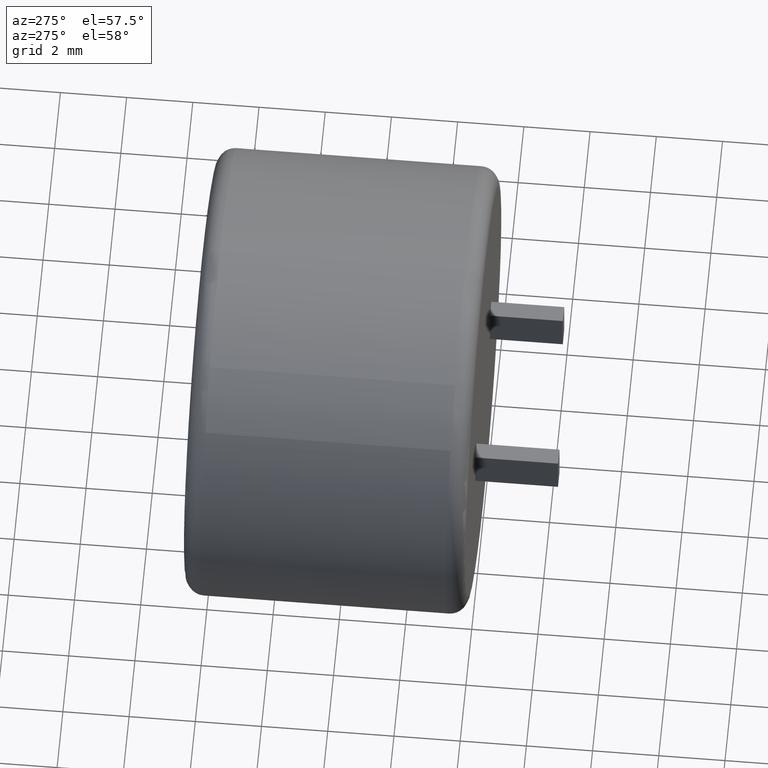
[diagram: clean part render]
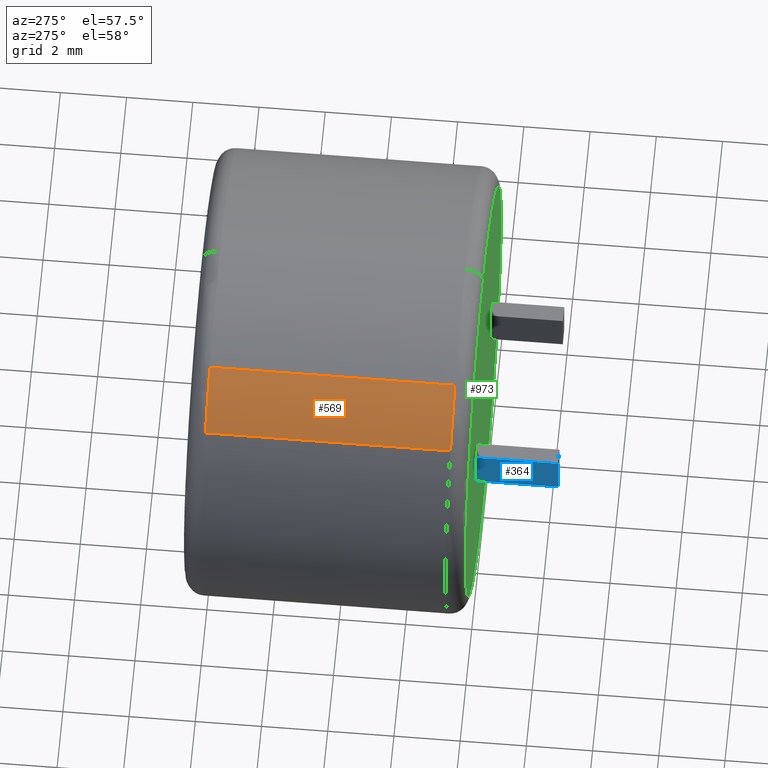
[diagram: same view with three faces highlighted in distinct colors, each labeled with its STEP entity id]
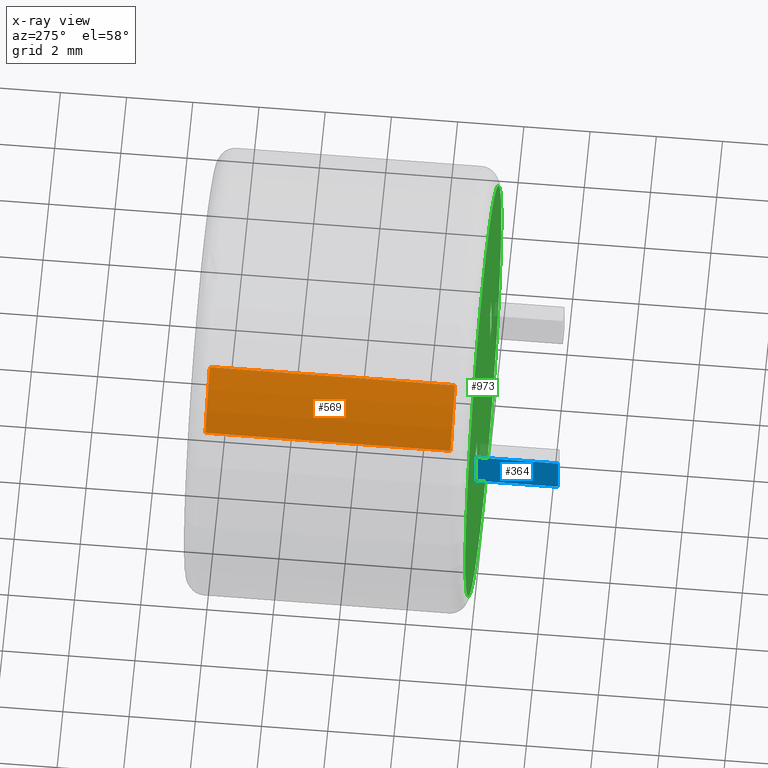
[diagram: x-ray of the same camera — body ghosted, the three highlighted faces saturated]
A machine part, auxiliary view with three faces highlighted in distinct colors.
The next image is the same camera in x-ray (body ghosted, the three faces saturated) — at least one of them is partly hidden behind the body in this view.
Their STEP definitions:

[orange] entity #569 — the highlighted cylindrical surface (partial cylindrical patch) has radius 6.76 mm, axis along (-0, -1, -0).
#2 = LINE ( 'NONE', #965, #1424 ) ;
#64 = DIRECTION ( 'NONE',  ( 0.0000000000000000000, 1.000000000000000000, 0.0000000000000000000 ) ) ;
#249 = CARTESIAN_POINT ( 'NONE',  ( 0.0000000000000000000, 8.500000000000000000, 0.0000000000000000000 ) ) ;
#262 = ORIENTED_EDGE ( 'NONE', *, *, #1116, .T. ) ;
#295 = CARTESIAN_POINT ( 'NONE',  ( 0.0000000000000000000, 0.5482500000000001300, 0.0000000000000000000 ) ) ;
#479 = VERTEX_POINT ( 'NONE', #1264 ) ;
#524 = CARTESIAN_POINT ( 'NONE',  ( -5.054955067196869900, 7.951750000000000500, 4.488321431072051800 ) ) ;
#569 = ADVANCED_FACE ( 'NONE', ( #1046 ), #1907, .T. ) ;
#727 = VERTEX_POINT ( 'NONE', #524 ) ;
#753 = VERTEX_POINT ( 'NONE', #1211 ) ;
#847 = DIRECTION ( 'NONE',  ( -0.0000000000000000000, -1.000000000000000000, -0.0000000000000000000 ) ) ;
#875 = EDGE_LOOP ( 'NONE', ( #2617, #262, #1889, #2301 ) ) ;
#882 = DIRECTION ( 'NONE',  ( 0.0000000000000000000, 0.0000000000000000000, -1.000000000000000000 ) ) ;
#893 = CIRCLE ( 'NONE', #1956, 6.759999999999999800 ) ;
#965 = CARTESIAN_POINT ( 'NONE',  ( -3.524182974669473700, 8.500000000000000000, 5.768685670154841500 ) ) ;
#1046 = FACE_OUTER_BOUND ( 'NONE', #875, .T. ) ;
#1081 = CARTESIAN_POINT ( 'NONE',  ( 0.0000000000000000000, 7.951750000000000500, 0.0000000000000000000 ) ) ;
#1116 = EDGE_CURVE ( 'NONE', #479, #753, #2552, .T. ) ;
#1208 = LINE ( 'NONE', #1671, #1302 ) ;
#1211 = CARTESIAN_POINT ( 'NONE',  ( -3.524182974669471500, 0.5482500000000001300, 5.768685670154843200 ) ) ;
#1264 = CARTESIAN_POINT ( 'NONE',  ( -5.054955067196869900, 0.5482500000000001300, 4.488321431072051800 ) ) ;
#1302 = VECTOR ( 'NONE', #847, 1000.000000000000000 ) ;
#1308 = DIRECTION ( 'NONE',  ( -0.0000000000000000000, -1.000000000000000000, -0.0000000000000000000 ) ) ;
#1311 = DIRECTION ( 'NONE',  ( -0.0000000000000000000, -1.000000000000000000, -0.0000000000000000000 ) ) ;
#1424 = VECTOR ( 'NONE', #2697, 1000.000000000000000 ) ;
#1627 = EDGE_CURVE ( 'NONE', #753, #2721, #2, .T. ) ;
#1671 = CARTESIAN_POINT ( 'NONE',  ( -5.054955067196872600, 8.500000000000000000, 4.488321431072049200 ) ) ;
#1760 = DIRECTION ( 'NONE',  ( 0.0000000000000000000, 0.0000000000000000000, -1.000000000000000000 ) ) ;
#1889 = ORIENTED_EDGE ( 'NONE', *, *, #1627, .T. ) ;
#1890 = EDGE_CURVE ( 'NONE', #2721, #727, #893, .T. ) ;
#1906 = AXIS2_PLACEMENT_3D ( 'NONE', #295, #64, #1760 ) ;
#1907 = CYLINDRICAL_SURFACE ( 'NONE', #2043, 6.759999999999999800 ) ;
#1956 = AXIS2_PLACEMENT_3D ( 'NONE', #1081, #1308, #882 ) ;
#2043 = AXIS2_PLACEMENT_3D ( 'NONE', #249, #1311, #2626 ) ;
#2301 = ORIENTED_EDGE ( 'NONE', *, *, #1890, .T. ) ;
#2361 = EDGE_CURVE ( 'NONE', #727, #479, #1208, .T. ) ;
#2552 = CIRCLE ( 'NONE', #1906, 6.759999999999999800 ) ;
#2617 = ORIENTED_EDGE ( 'NONE', *, *, #2361, .T. ) ;
#2626 = DIRECTION ( 'NONE',  ( 0.0000000000000000000, 0.0000000000000000000, -1.000000000000000000 ) ) ;
#2697 = DIRECTION ( 'NONE',  ( 0.0000000000000000000, 1.000000000000000000, 0.0000000000000000000 ) ) ;
#2708 = CARTESIAN_POINT ( 'NONE',  ( -3.524182974669473700, 7.951750000000000500, 5.768685670154841500 ) ) ;
#2721 = VERTEX_POINT ( 'NONE', #2708 ) ;

[blue] entity #364 — the highlighted planar face has unit normal (-1, 0, 0).
#35 = LINE ( 'NONE', #1552, #540 ) ;
#133 = EDGE_CURVE ( 'NONE', #705, #476, #1074, .T. ) ;
#304 = FACE_OUTER_BOUND ( 'NONE', #1992, .T. ) ;
#308 = CARTESIAN_POINT ( 'NONE',  ( -2.789999999999999100, -2.500000000000000000, 0.6499999999999988000 ) ) ;
#346 = CARTESIAN_POINT ( 'NONE',  ( -2.789999999999999100, -0.0000000000000000000, -1.232228533086295600E-015 ) ) ;
#364 = ADVANCED_FACE ( 'NONE', ( #304 ), #843, .T. ) ;
#431 = EDGE_CURVE ( 'NONE', #1998, #2670, #1436, .T. ) ;
#476 = VERTEX_POINT ( 'NONE', #2350 ) ;
#526 = LINE ( 'NONE', #346, #1997 ) ;
#527 = ORIENTED_EDGE ( 'NONE', *, *, #567, .T. ) ;
#540 = VECTOR ( 'NONE', #1113, 1000.000000000000000 ) ;
#567 = EDGE_CURVE ( 'NONE', #1998, #705, #35, .T. ) ;
#630 = CARTESIAN_POINT ( 'NONE',  ( -2.789999999999999100, -2.500000000000000000, -1.232228533086295600E-015 ) ) ;
#662 = CARTESIAN_POINT ( 'NONE',  ( -2.789999999999999100, -2.500000000000000000, -0.6500000000000011300 ) ) ;
#705 = VERTEX_POINT ( 'NONE', #308 ) ;
#843 = PLANE ( 'NONE',  #2020 ) ;
#851 = VECTOR ( 'NONE', #1544, 1000.000000000000000 ) ;
#955 = DIRECTION ( 'NONE',  ( 0.0000000000000000000, 0.0000000000000000000, 1.000000000000000000 ) ) ;
#1058 = CARTESIAN_POINT ( 'NONE',  ( -2.789999999999999100, -2.500000000000000000, -0.6500000000000011300 ) ) ;
#1074 = LINE ( 'NONE', #2242, #851 ) ;
#1111 = ORIENTED_EDGE ( 'NONE', *, *, #133, .T. ) ;
#1113 = DIRECTION ( 'NONE',  ( 0.0000000000000000000, 0.0000000000000000000, 1.000000000000000000 ) ) ;
#1436 = LINE ( 'NONE', #1058, #1566 ) ;
#1544 = DIRECTION ( 'NONE',  ( -0.0000000000000000000, 1.000000000000000000, -0.0000000000000000000 ) ) ;
#1552 = CARTESIAN_POINT ( 'NONE',  ( -2.789999999999999100, -2.500000000000000000, -0.6500000000000011300 ) ) ;
#1566 = VECTOR ( 'NONE', #2583, 1000.000000000000000 ) ;
#1586 = EDGE_CURVE ( 'NONE', #2670, #476, #526, .T. ) ;
#1715 = DIRECTION ( 'NONE',  ( 0.0000000000000000000, 0.0000000000000000000, 1.000000000000000000 ) ) ;
#1934 = DIRECTION ( 'NONE',  ( -1.000000000000000000, 0.0000000000000000000, 0.0000000000000000000 ) ) ;
#1992 = EDGE_LOOP ( 'NONE', ( #2121, #2393, #527, #1111 ) ) ;
#1997 = VECTOR ( 'NONE', #955, 1000.000000000000000 ) ;
#1998 = VERTEX_POINT ( 'NONE', #662 ) ;
#2020 = AXIS2_PLACEMENT_3D ( 'NONE', #630, #1934, #1715 ) ;
#2121 = ORIENTED_EDGE ( 'NONE', *, *, #1586, .F. ) ;
#2242 = CARTESIAN_POINT ( 'NONE',  ( -2.789999999999999100, -2.500000000000000000, 0.6499999999999988000 ) ) ;
#2350 = CARTESIAN_POINT ( 'NONE',  ( -2.789999999999999100, 0.0000000000000000000, 0.6499999999999988000 ) ) ;
#2393 = ORIENTED_EDGE ( 'NONE', *, *, #431, .F. ) ;
#2583 = DIRECTION ( 'NONE',  ( -0.0000000000000000000, 1.000000000000000000, -0.0000000000000000000 ) ) ;
#2633 = CARTESIAN_POINT ( 'NONE',  ( -2.789999999999999100, -0.0000000000000000000, -0.6500000000000011300 ) ) ;
#2670 = VERTEX_POINT ( 'NONE', #2633 ) ;

[green] entity #973 — the highlighted planar face has unit normal (0, 1, 0).
#40 = CARTESIAN_POINT ( 'NONE',  ( 2.290000000000000000, 0.0000000000000000000, 0.6499999999999955800 ) ) ;
#54 = DIRECTION ( 'NONE',  ( 1.000000000000000000, 0.0000000000000000000, 0.0000000000000000000 ) ) ;
#115 = CARTESIAN_POINT ( 'NONE',  ( 2.790000000000000000, 0.0000000000000000000, -4.242524731677385800E-015 ) ) ;
#118 = ORIENTED_EDGE ( 'NONE', *, *, #1496, .T. ) ;
#126 = CARTESIAN_POINT ( 'NONE',  ( -2.789999999999999100, 0.0000000000000000000, 0.6499999999999988000 ) ) ;
#212 = DIRECTION ( 'NONE',  ( -0.0000000000000000000, -1.000000000000000000, -0.0000000000000000000 ) ) ;
#260 = LINE ( 'NONE', #468, #903 ) ;
#290 = CARTESIAN_POINT ( 'NONE',  ( 2.790000000000000000, 0.0000000000000000000, 0.6499999999999956900 ) ) ;
#346 = CARTESIAN_POINT ( 'NONE',  ( -2.789999999999999100, -0.0000000000000000000, -1.232228533086295600E-015 ) ) ;
#370 = FACE_BOUND ( 'NONE', #919, .T. ) ;
#460 = CIRCLE ( 'NONE', #1229, 6.201749999999999700 ) ;
#468 = CARTESIAN_POINT ( 'NONE',  ( -2.289999999999999100, 0.0000000000000000000, 0.6499999999999986900 ) ) ;
#476 = VERTEX_POINT ( 'NONE', #2350 ) ;
#502 = VECTOR ( 'NONE', #1755, 1000.000000000000000 ) ;
#523 = VERTEX_POINT ( 'NONE', #40 ) ;
#526 = LINE ( 'NONE', #346, #1997 ) ;
#546 = EDGE_CURVE ( 'NONE', #2670, #1222, #2178, .T. ) ;
#560 = ORIENTED_EDGE ( 'NONE', *, *, #546, .F. ) ;
#657 = VERTEX_POINT ( 'NONE', #290 ) ;
#665 = EDGE_CURVE ( 'NONE', #1650, #657, #874, .T. ) ;
#682 = EDGE_CURVE ( 'NONE', #657, #523, #2218, .T. ) ;
#688 = CARTESIAN_POINT ( 'NONE',  ( 7.930659590428366300E-016, 0.0000000000000000000, -6.201749999999999700 ) ) ;
#766 = EDGE_LOOP ( 'NONE', ( #1643, #118, #2548, #560 ) ) ;
#874 = LINE ( 'NONE', #115, #1845 ) ;
#891 = AXIS2_PLACEMENT_3D ( 'NONE', #1503, #1278, #1729 ) ;
#901 = CARTESIAN_POINT ( 'NONE',  ( -2.789999999999999100, -0.0000000000000000000, -0.6500000000000011300 ) ) ;
#903 = VECTOR ( 'NONE', #1941, 1000.000000000000000 ) ;
#919 = EDGE_LOOP ( 'NONE', ( #2654, #2641, #1525, #1512 ) ) ;
#955 = DIRECTION ( 'NONE',  ( 0.0000000000000000000, 0.0000000000000000000, 1.000000000000000000 ) ) ;
#961 = DIRECTION ( 'NONE',  ( -0.0000000000000000000, -1.000000000000000000, -0.0000000000000000000 ) ) ;
#973 = ADVANCED_FACE ( 'NONE', ( #1690, #1168, #370 ), #2319, .F. ) ;
#1001 = CARTESIAN_POINT ( 'NONE',  ( 2.289999999999999600, 0.0000000000000000000, -0.6500000000000042400 ) ) ;
#1049 = VECTOR ( 'NONE', #2499, 1000.000000000000000 ) ;
#1155 = DIRECTION ( 'NONE',  ( -1.000000000000000000, -0.0000000000000000000, -2.168404344971008900E-016 ) ) ;
#1168 = FACE_BOUND ( 'NONE', #766, .T. ) ;
#1169 = EDGE_CURVE ( 'NONE', #2165, #1650, #1873, .T. ) ;
#1188 = ORIENTED_EDGE ( 'NONE', *, *, #2191, .T. ) ;
#1222 = VERTEX_POINT ( 'NONE', #1336 ) ;
#1229 = AXIS2_PLACEMENT_3D ( 'NONE', #1803, #961, #2033 ) ;
#1278 = DIRECTION ( 'NONE',  ( 0.0000000000000000000, 1.000000000000000000, 0.0000000000000000000 ) ) ;
#1299 = VECTOR ( 'NONE', #54, 1000.000000000000000 ) ;
#1336 = CARTESIAN_POINT ( 'NONE',  ( -2.289999999999999100, 0.0000000000000000000, -0.6500000000000012400 ) ) ;
#1490 = CARTESIAN_POINT ( 'NONE',  ( -2.289999999999999100, 0.0000000000000000000, 0.6499999999999986900 ) ) ;
#1496 = EDGE_CURVE ( 'NONE', #476, #1577, #2575, .T. ) ;
#1503 = CARTESIAN_POINT ( 'NONE',  ( 0.0000000000000000000, 0.0000000000000000000, 0.0000000000000000000 ) ) ;
#1512 = ORIENTED_EDGE ( 'NONE', *, *, #1169, .F. ) ;
#1525 = ORIENTED_EDGE ( 'NONE', *, *, #665, .F. ) ;
#1577 = VERTEX_POINT ( 'NONE', #1490 ) ;
#1582 = DIRECTION ( 'NONE',  ( 0.0000000000000000000, 0.0000000000000000000, 1.000000000000000000 ) ) ;
#1586 = EDGE_CURVE ( 'NONE', #2670, #476, #526, .T. ) ;
#1591 = CARTESIAN_POINT ( 'NONE',  ( 2.290000000000000000, 0.0000000000000000000, 0.6499999999999955800 ) ) ;
#1603 = LINE ( 'NONE', #1001, #1049 ) ;
#1625 = VECTOR ( 'NONE', #2456, 1000.000000000000000 ) ;
#1643 = ORIENTED_EDGE ( 'NONE', *, *, #1586, .T. ) ;
#1650 = VERTEX_POINT ( 'NONE', #1808 ) ;
#1690 = FACE_OUTER_BOUND ( 'NONE', #2474, .T. ) ;
#1713 = CARTESIAN_POINT ( 'NONE',  ( 0.0000000000000000000, 0.0000000000000000000, 0.0000000000000000000 ) ) ;
#1729 = DIRECTION ( 'NONE',  ( 0.0000000000000000000, -0.0000000000000000000, 1.000000000000000000 ) ) ;
#1755 = DIRECTION ( 'NONE',  ( 1.000000000000000000, 0.0000000000000000000, -2.168404344971008900E-016 ) ) ;
#1803 = CARTESIAN_POINT ( 'NONE',  ( 0.0000000000000000000, 0.0000000000000000000, 0.0000000000000000000 ) ) ;
#1806 = VECTOR ( 'NONE', #1155, 1000.000000000000000 ) ;
#1808 = CARTESIAN_POINT ( 'NONE',  ( 2.790000000000000000, 0.0000000000000000000, -0.6500000000000042400 ) ) ;
#1845 = VECTOR ( 'NONE', #1582, 1000.000000000000000 ) ;
#1873 = LINE ( 'NONE', #2623, #1299 ) ;
#1941 = DIRECTION ( 'NONE',  ( 0.0000000000000000000, -0.0000000000000000000, -1.000000000000000000 ) ) ;
#1995 = EDGE_CURVE ( 'NONE', #2667, #2507, #2659, .T. ) ;
#1997 = VECTOR ( 'NONE', #955, 1000.000000000000000 ) ;
#2033 = DIRECTION ( 'NONE',  ( 0.0000000000000000000, 0.0000000000000000000, 1.000000000000000000 ) ) ;
#2141 = AXIS2_PLACEMENT_3D ( 'NONE', #1713, #212, #2373 ) ;
#2165 = VERTEX_POINT ( 'NONE', #2476 ) ;
#2178 = LINE ( 'NONE', #901, #502 ) ;
#2191 = EDGE_CURVE ( 'NONE', #2507, #2667, #460, .T. ) ;
#2218 = LINE ( 'NONE', #1591, #1806 ) ;
#2274 = ORIENTED_EDGE ( 'NONE', *, *, #1995, .T. ) ;
#2319 = PLANE ( 'NONE',  #891 ) ;
#2350 = CARTESIAN_POINT ( 'NONE',  ( -2.789999999999999100, 0.0000000000000000000, 0.6499999999999988000 ) ) ;
#2373 = DIRECTION ( 'NONE',  ( 0.0000000000000000000, 0.0000000000000000000, 1.000000000000000000 ) ) ;
#2408 = CARTESIAN_POINT ( 'NONE',  ( 0.0000000000000000000, 0.0000000000000000000, 6.201749999999999700 ) ) ;
#2456 = DIRECTION ( 'NONE',  ( 1.000000000000000000, 0.0000000000000000000, -2.168404344971008900E-016 ) ) ;
#2463 = EDGE_CURVE ( 'NONE', #1577, #1222, #260, .T. ) ;
#2474 = EDGE_LOOP ( 'NONE', ( #2274, #1188 ) ) ;
#2476 = CARTESIAN_POINT ( 'NONE',  ( 2.289999999999999600, 0.0000000000000000000, -0.6500000000000042400 ) ) ;
#2499 = DIRECTION ( 'NONE',  ( -3.336006684570783100E-016, -0.0000000000000000000, -1.000000000000000000 ) ) ;
#2507 = VERTEX_POINT ( 'NONE', #688 ) ;
#2548 = ORIENTED_EDGE ( 'NONE', *, *, #2463, .T. ) ;
#2575 = LINE ( 'NONE', #126, #1625 ) ;
#2623 = CARTESIAN_POINT ( 'NONE',  ( 2.289999999999999600, 0.0000000000000000000, -0.6500000000000042400 ) ) ;
#2633 = CARTESIAN_POINT ( 'NONE',  ( -2.789999999999999100, -0.0000000000000000000, -0.6500000000000011300 ) ) ;
#2641 = ORIENTED_EDGE ( 'NONE', *, *, #682, .F. ) ;
#2654 = ORIENTED_EDGE ( 'NONE', *, *, #2701, .F. ) ;
#2659 = CIRCLE ( 'NONE', #2141, 6.201749999999999700 ) ;
#2667 = VERTEX_POINT ( 'NONE', #2408 ) ;
#2670 = VERTEX_POINT ( 'NONE', #2633 ) ;
#2701 = EDGE_CURVE ( 'NONE', #523, #2165, #1603, .T. ) ;